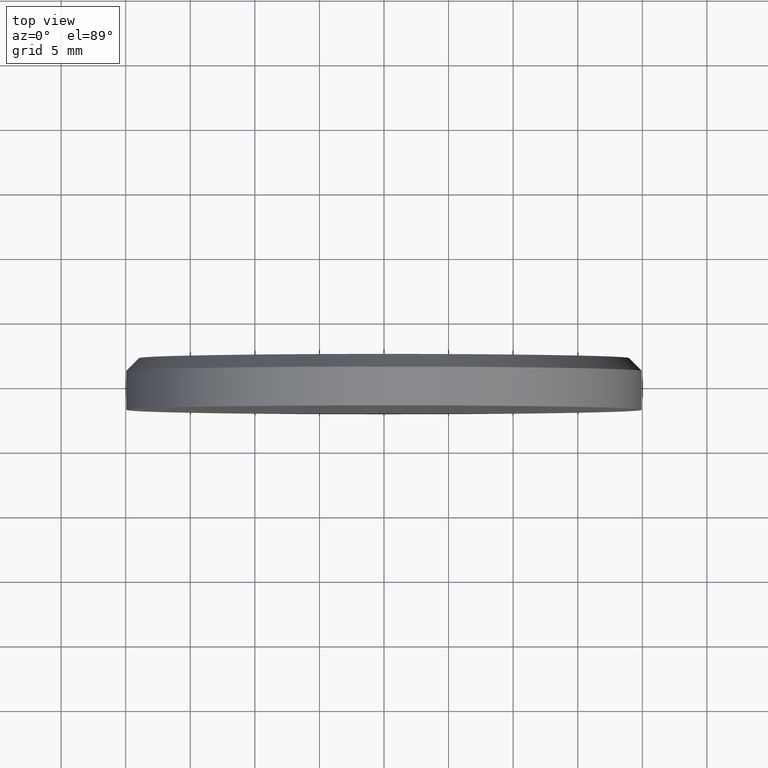
[diagram: clean part render]
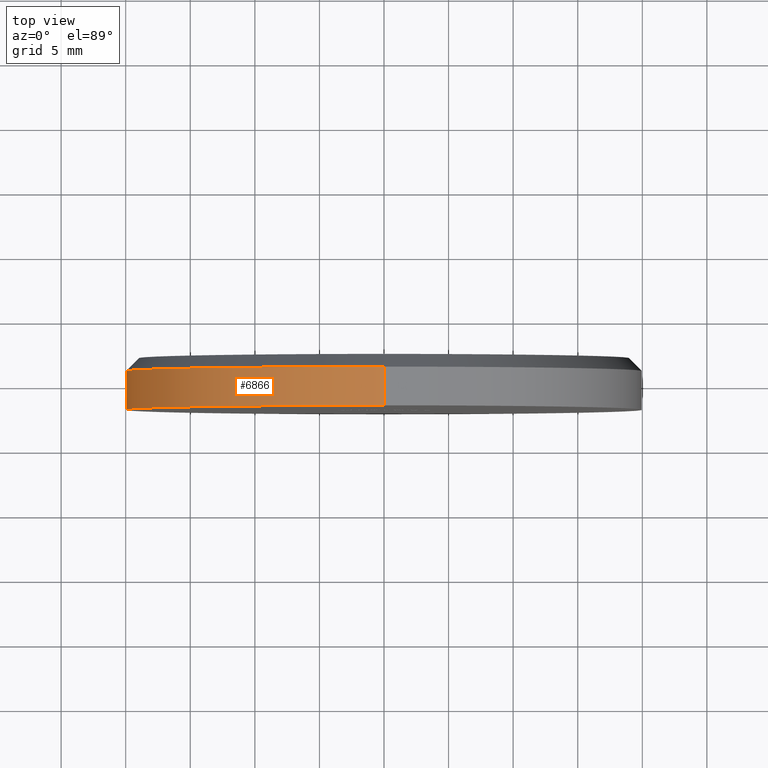
[diagram: same view with one face highlighted and labeled with its STEP entity id]
A machine part, top view. The second image highlights one B-rep face of the part: STEP entity #6866.
In plain terms, the highlighted cylindrical surface (partial cylindrical patch) has radius 20 mm, axis along (-0, -1, -0).
Its self-contained STEP definition (entity closure, byte-faithful):
#482 = DIRECTION ( 'NONE',  ( -0.000000000000000000, -1.000000000000000000, -0.000000000000000000 ) ) ;
#700 = VERTEX_POINT ( 'NONE', #9888 ) ;
#1092 = VECTOR ( 'NONE', #482, 1000.000000000000000 ) ;
#1576 = VERTEX_POINT ( 'NONE', #7737 ) ;
#2003 = EDGE_CURVE ( 'NONE', #1576, #9084, #6605, .T. ) ;
#2306 = DIRECTION ( 'NONE',  ( -0.000000000000000000, -1.000000000000000000, -0.000000000000000000 ) ) ;
#2642 = DIRECTION ( 'NONE',  ( 0.000000000000000000, 1.000000000000000000, 0.000000000000000000 ) ) ;
#3490 = AXIS2_PLACEMENT_3D ( 'NONE', #3676, #3531, #9159 ) ;
#3531 = DIRECTION ( 'NONE',  ( 0.000000000000000000, -1.000000000000000000, 0.000000000000000000 ) ) ;
#3676 = CARTESIAN_POINT ( 'NONE',  ( 0.000000000000000000, 0.9999999999999887867, 0.000000000000000000 ) ) ;
#3692 = EDGE_LOOP ( 'NONE', ( #5160, #9533, #11354, #14222 ) ) ;
#4061 = AXIS2_PLACEMENT_3D ( 'NONE', #8799, #4406, #13293 ) ;
#4250 = CIRCLE ( 'NONE', #13419, 20.00000000000000000 ) ;
#4406 = DIRECTION ( 'NONE',  ( -0.000000000000000000, -1.000000000000000000, -0.000000000000000000 ) ) ;
#5160 = ORIENTED_EDGE ( 'NONE', *, *, #14324, .F. ) ;
#5238 = CARTESIAN_POINT ( 'NONE',  ( 0.000000000000000000, 2.000000000000000000, -20.00000000000000000 ) ) ;
#6520 = EDGE_CURVE ( 'NONE', #700, #1576, #8638, .T. ) ;
#6605 = LINE ( 'NONE', #5238, #1092 ) ;
#6866 = ADVANCED_FACE ( 'NONE', ( #14124 ), #8112, .T. ) ;
#6930 = VECTOR ( 'NONE', #2306, 1000.000000000000000 ) ;
#7280 = CARTESIAN_POINT ( 'NONE',  ( 0.000000000000000000, -2.000000000000000000, -20.00000000000000000 ) ) ;
#7737 = CARTESIAN_POINT ( 'NONE',  ( 0.000000000000000000, 0.9999999999999887867, -20.00000000000000000 ) ) ;
#8058 = CARTESIAN_POINT ( 'NONE',  ( 2.449293598294706513E-15, 2.000000000000000000, 20.00000000000000000 ) ) ;
#8112 = CYLINDRICAL_SURFACE ( 'NONE', #4061, 20.00000000000000000 ) ;
#8638 = CIRCLE ( 'NONE', #3490, 20.00000000000000000 ) ;
#8799 = CARTESIAN_POINT ( 'NONE',  ( 0.000000000000000000, 2.000000000000000000, 0.000000000000000000 ) ) ;
#9073 = VERTEX_POINT ( 'NONE', #14035 ) ;
#9084 = VERTEX_POINT ( 'NONE', #7280 ) ;
#9159 = DIRECTION ( 'NONE',  ( 0.000000000000000000, 0.000000000000000000, 1.000000000000000000 ) ) ;
#9533 = ORIENTED_EDGE ( 'NONE', *, *, #6520, .T. ) ;
#9888 = CARTESIAN_POINT ( 'NONE',  ( 2.449293598294706513E-15, 0.9999999999999887867, 20.00000000000000000 ) ) ;
#11354 = ORIENTED_EDGE ( 'NONE', *, *, #2003, .T. ) ;
#11739 = DIRECTION ( 'NONE',  ( 0.000000000000000000, 0.000000000000000000, 1.000000000000000000 ) ) ;
#12926 = CARTESIAN_POINT ( 'NONE',  ( 0.000000000000000000, -2.000000000000000000, 0.000000000000000000 ) ) ;
#13293 = DIRECTION ( 'NONE',  ( 0.000000000000000000, 0.000000000000000000, -1.000000000000000000 ) ) ;
#13419 = AXIS2_PLACEMENT_3D ( 'NONE', #12926, #2642, #11739 ) ;
#13618 = LINE ( 'NONE', #8058, #6930 ) ;
#14035 = CARTESIAN_POINT ( 'NONE',  ( 2.449293598294706513E-15, -2.000000000000000000, 20.00000000000000000 ) ) ;
#14124 = FACE_OUTER_BOUND ( 'NONE', #3692, .T. ) ;
#14222 = ORIENTED_EDGE ( 'NONE', *, *, #14601, .T. ) ;
#14324 = EDGE_CURVE ( 'NONE', #700, #9073, #13618, .T. ) ;
#14601 = EDGE_CURVE ( 'NONE', #9084, #9073, #4250, .T. ) ;